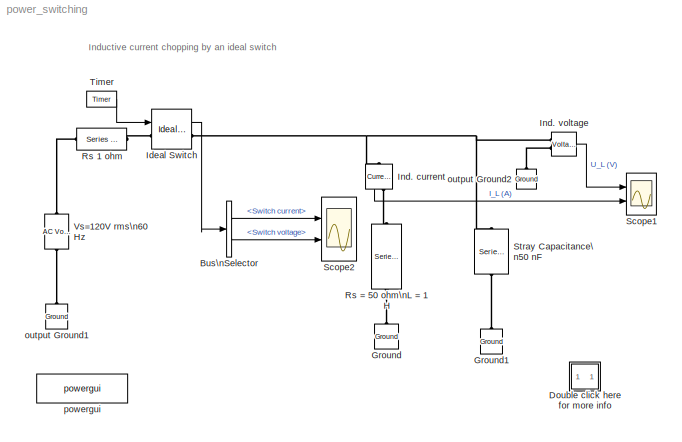
MODEL power_switching
KIND model
BLOCK [Reference]   Ind. current  REF=powerlib/Measurements/Current Measurement
  AttributesFormatString = \\n
  OutputType = Magnitude
  PSBequivalent = 0
  PhasorSimulation = off
  Ports = [0, 1, 0, 0, 0, 1, 1]
  ShowPortLabels = on
  SourceBlock = powerlib/Measurements/Current Measurement
  SourceType = Current Measurement
  Tag = PoWeRsYsTeMmEaSuReMeNt
BLOCK [BusSelector] Bus\nSelector
  DialogController = Simulink.DDGSource_Bus
  OutputSignals = Switch current,Switch voltage
  Ports = [1, 2]
BLOCK [SubSystem] Double click here for more info
  MaskDisplay = disp('?')
  MaskIconFrame = on
  MaskIconOpaque = on
  MaskIconRotate = none
  MaskIconUnits = autoscale
  MinAlgLoopOccurrences = off
  Ports = []
  RTWSystemCode = Auto
  TreatAsAtomicUnit = off
BLOCK [Reference] Ground  REF=powerlib/Elements/Ground
  AttributesFormatString = \\n
  LConnTagsString = a
  LeftPortType = p1
  PhysicalDomain = powersysdomain
  Ports = [0, 0, 0, 0, 0, 1]
  RightPortType = p1
  SourceBlock = powerlib/Elements/Ground
  SourceType = Ground
  SubClassName = unknown
BLOCK [Reference] Ground1  REF=powerlib/Elements/Ground
  AttributesFormatString = \\n
  LConnTagsString = a
  LeftPortType = p1
  PhysicalDomain = powersysdomain
  Ports = [0, 0, 0, 0, 0, 1]
  RightPortType = p1
  SourceBlock = powerlib/Elements/Ground
  SourceType = Ground
  SubClassName = unknown
BLOCK [Reference] Ideal Switch  REF=powerlib/Power\nElectronics/Ideal Switch
  AttributesFormatString = \\n
  Cs = 0
  IC = 1
  Lon = 1e-9
  Measurements = on
  Ports = [1, 1, 0, 0, 0, 1, 1]
  Ron = 1e-3
  Rs = Inf
  ShowPortLabels = on
  SourceBlock = powerlib/Power\nElectronics/Ideal Switch
  SourceType = Ideal Switch
BLOCK [Reference] Ind. voltage  REF=powerlib/Measurements/Voltage Measurement
  AttributesFormatString = \\n
  OutputType = Magnitude
  PSBequivalent = 0
  PhasorSimulation = off
  Ports = [0, 1, 0, 0, 0, 2]
  ShowPortLabels = on
  SourceBlock = powerlib/Measurements/Voltage Measurement
  SourceType = Voltage Measurement
  Tag = PoWeRsYsTeMmEaSuReMeNt
BLOCK [Reference] Rs 1 ohm  REF=powerlib/Elements/Series RLC Branch
  AttributesFormatString = \\n
  Capacitance = Inf
  Inductance = 0
  LConnTagsString = __new0
  LeftPortType = p1
  Measurements = None
  PhysicalDomain = powersysdomain
  Ports = [0, 0, 0, 0, 0, 1, 1]
  RConnTagsString = __new0
  Resistance = 1
  RightPortType = p1
  SourceBlock = powerlib/Elements/Series RLC Branch
  SourceType = Series RLC Branch
  SubClassName = unknown
BLOCK [Reference] Rs = 50 ohm\nL = 1 H  REF=powerlib/Elements/Series RLC Branch
  AttributesFormatString = \\n
  Capacitance = Inf
  Inductance = 1
  LConnTagsString = __new0
  LeftPortType = p1
  Measurements = None
  PhysicalDomain = powersysdomain
  Ports = [0, 0, 0, 0, 0, 1, 1]
  RConnTagsString = __new0
  Resistance = 50
  RightPortType = p1
  SourceBlock = powerlib/Elements/Series RLC Branch
  SourceType = Series RLC Branch
  SubClassName = unknown
BLOCK [Scope] Scope1
  DataFormat = Array
  LimitDataPoints = off
  NumInputPorts = 2
  Ports = [2]
  SaveName = U_L
  TimeRange = 0.2
  YMax = 1000~0.928922
  YMin = -1000~-0.477505
  ZoomMode = yonly
BLOCK [Scope] Scope2
  DataFormat = Array
  LimitDataPoints = off
  NumInputPorts = 2
  Ports = [2]
  TimeRange = 0.2
  YMax = 10~1000
  YMin = -30~-1000
  ZoomMode = yonly
BLOCK [Reference] Stray Capacitance\n50 nF  REF=powerlib/Elements/Series RLC Branch
  AttributesFormatString = \\n
  Capacitance = 50e-9
  Inductance = 0
  LConnTagsString = __new0
  LeftPortType = p1
  Measurements = None
  PhysicalDomain = powersysdomain
  Ports = [0, 0, 0, 0, 0, 1, 1]
  RConnTagsString = __new0
  Resistance = 0
  RightPortType = p1
  SourceBlock = powerlib/Elements/Series RLC Branch
  SourceType = Series RLC Branch
  SubClassName = unknown
BLOCK [Reference] Timer  REF=powerlib_extras/Control \nBlocks/Timer
  Ports = [0, 1]
  ShowPortLabels = on
  SourceBlock = powerlib_extras/Control \nBlocks/Timer
  SourceType = Timer
  e = [1 0 1 ]
  t = [0 36e-3 150e-3]
BLOCK [Reference] Vs=120V rms\n60 Hz  REF=powerlib/Electrical\nSources/AC Voltage Source
  Amplitude = 120*sqrt(2)
  AttributesFormatString = \\n
  Description = source block
  Frequency = 60
  Measurements = None
  Phase = 0
  Ports = [0, 0, 0, 0, 0, 1, 1]
  SampleTime = 0
  ShowPortLabels = on
  SourceBlock = powerlib/Electrical\nSources/AC Voltage Source
  SourceType = AC Voltage Source
BLOCK [Reference] output Ground1  REF=powerlib/Elements/Ground
  AttributesFormatString = \\n
  LConnTagsString = a
  LeftPortType = p1
  PhysicalDomain = powersysdomain
  Ports = [0, 0, 0, 0, 0, 1]
  RightPortType = p1
  SourceBlock = powerlib/Elements/Ground
  SourceType = Ground
  SubClassName = unknown
BLOCK [Reference] output Ground2  REF=powerlib/Elements/Ground
  AttributesFormatString = \\n
  LConnTagsString = a
  LeftPortType = p1
  PhysicalDomain = powersysdomain
  Ports = [0, 0, 0, 0, 0, 1]
  RightPortType = p1
  SourceBlock = powerlib/Elements/Ground
  SourceType = Ground
  SubClassName = unknown
BLOCK [Reference] powergui  REF=powerlib/powergui
  DisplayStyle = off
  Frange = logspace(0,3,50)
  FreqAxis = off
  MaxFrequency = 1000
  Ports = []
  Priority = 2
  RmsSteady = 1
  ShowPortLabels = on
  SourceBlock = powerlib/powergui
  SourceType = PSB option menu block
  StartTime = 0.0
  Ts = 0
  Xlog = off
  Ylog = off
  ZoomFFT = on
  cycles = 1
  display = off
  echomessages = on
  frequency = 60
  frequencyindice = 1
  frequencyindicesteady = 1
  fundamental = 60
  methode = off
  save = off
  variable = ZData
ANNOTATION (root): Inductive current chopping by an ideal switch
ANNOTATION Double click here for more info: Circuit Description
ANNOTATION Double click here for more info: Demonstration
ANNOTATION Double click here for more info: G. Sybille (Hydro-Quebec)
ANNOTATION Double click here for more info: Start the simulation.and observe the inductor voltage U_L and inductor current I_L on Scope1\nAt the opening time, t = 36 ms, the current in the inductor is I_L= 0.187 A. The current chopping in the inductor produces a \nhigh frequency overvoltage (711 Hz) across the inductor. The maximum voltage can be calculated from the following equation:\n\n U_Lmax = I_L*sqrt(L/C) = 0.187*sqrt(1/50e-9) = 836 ...<+480ch>
ANNOTATION Double click here for more info: The Ideal Switch is used to switch off and on an inductor (L = 1H, R = 50 ohms) on a 120 Vrms, 60 Hz source.\nThe inductor has a stray capacitance C = 50 nF. The switch resistance is 1e-3 ohm.\nThe switch is initially closed (initial state = 1). It is open at time t = 36ms and then reclosed at time t = 0.15 s.
ANNOTATION Double click here for more info: This example illustrates the effect of current chopping in an inductive circuit
LINE   Ind. current:1 -> Scope1:2
LINE Bus\nSelector:1 -> Scope2:1
LINE Bus\nSelector:2 -> Scope2:2
LINE Ideal Switch:1 -> Bus\nSelector:1
LINE Ind. voltage:1 -> Scope1:1
LINE Timer:1 -> Ideal Switch:1
PNET net1:   Ind. current:LConn1 -- Ideal Switch:RConn1 -- Ind. voltage:LConn1 -- Stray Capacitance\n50 nF:LConn1
PLINE   Ind. current:RConn1 -- Rs = 50 ohm\nL = 1 H:LConn1
PLINE Ground1:LConn1 -- Stray Capacitance\n50 nF:RConn1
PLINE Ground:LConn1 -- Rs = 50 ohm\nL = 1 H:RConn1
PLINE Ideal Switch:LConn1 -- Rs 1 ohm:RConn1
PLINE Ind. voltage:LConn2 -- output Ground2:LConn1
PLINE Rs 1 ohm:LConn1 -- Vs=120V rms\n60 Hz:RConn1
PLINE Vs=120V rms\n60 Hz:LConn1 -- output Ground1:LConn1
note: PNET lines group multi-terminal physical nets as a canonical sorted terminal list (undirected conserving connections); 2-terminal nets keep the pairwise PLINE form
